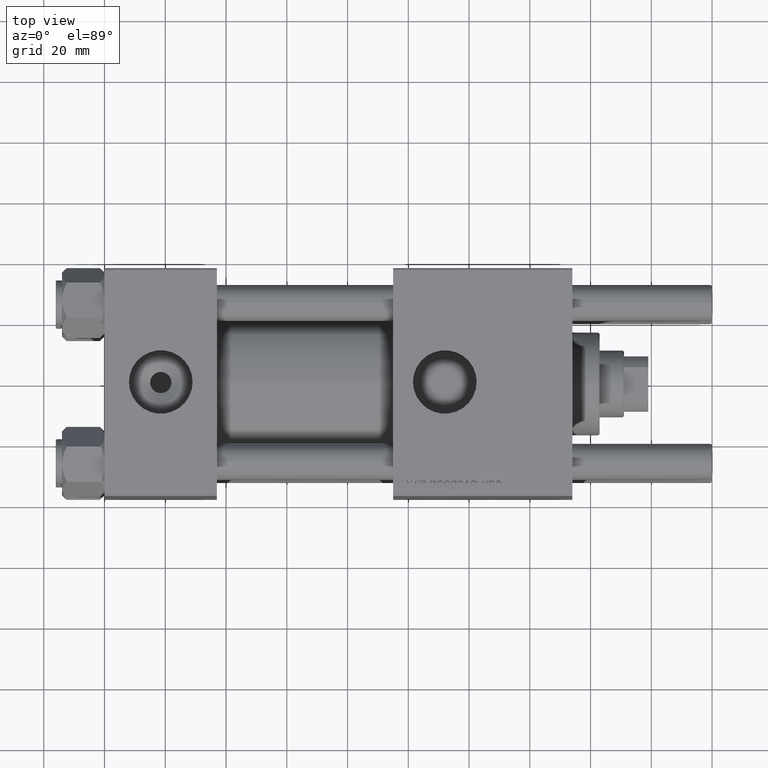
[diagram: clean part render]
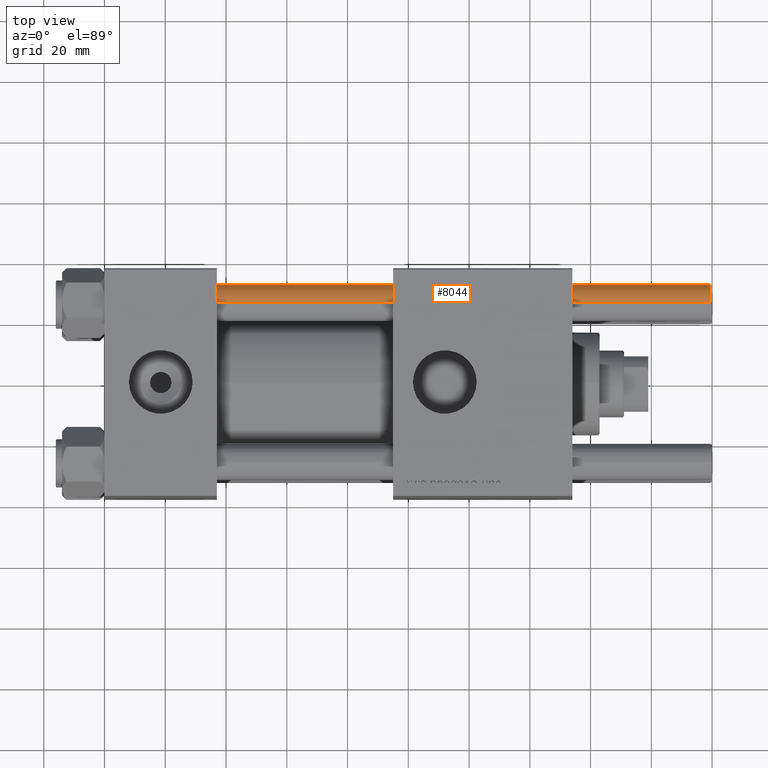
[diagram: same view with one face highlighted and labeled with its STEP entity id]
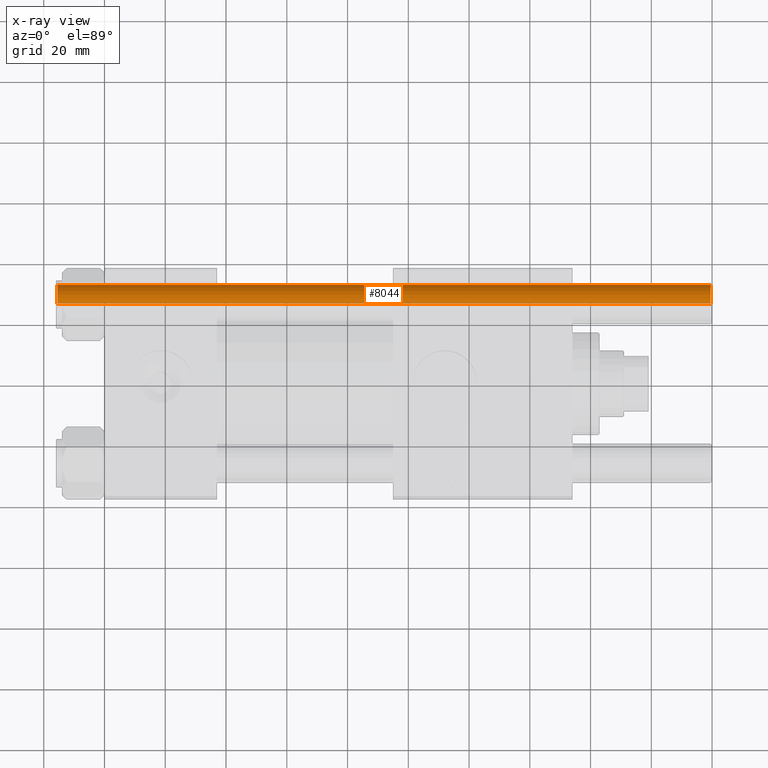
[diagram: x-ray of the same camera — body ghosted, the highlighted face saturated]
A machine part, top view. The second image highlights one B-rep face of the part: STEP entity #8044.
The next image is the same camera in x-ray: the body ghosted, the highlighted face saturated — about 0% of this face is hidden behind the body in this view.
In plain terms, the highlighted cylindrical surface (edge-blend (fillet) strip) has radius 6 mm, axis along (1, -0, -0).
Its self-contained STEP definition (entity closure, byte-faithful):
#4216 = DIRECTION ( 'NONE',  ( 1.000000000000000000, 0.000000000000000000, 0.000000000000000000 ) ) ;
#8044 = ADVANCED_FACE ( 'NONE', ( #55894 ), #38654, .T. ) ;
#8506 = CARTESIAN_POINT ( 'NONE',  ( 0.000000000000000000, 0.000000000000000000, 215.5000000000000284 ) ) ;
#8533 = CARTESIAN_POINT ( 'NONE',  ( 6.000000000000000888, 7.347880794884120722E-16, 215.5000000000000284 ) ) ;
#10506 = CARTESIAN_POINT ( 'NONE',  ( 0.000000000000000000, 0.000000000000000000, 0.5000000000000004441 ) ) ;
#11086 = AXIS2_PLACEMENT_3D ( 'NONE', #12852, #47843, #56459 ) ;
#12288 = CARTESIAN_POINT ( 'NONE',  ( 6.000000000000000888, 7.347880794884120722E-16, 216.0000000000000000 ) ) ;
#12377 = EDGE_LOOP ( 'NONE', ( #35232, #15781, #15096, #19320 ) ) ;
#12852 = CARTESIAN_POINT ( 'NONE',  ( 0.000000000000000000, 0.000000000000000000, 216.0000000000000000 ) ) ;
#13279 = EDGE_CURVE ( 'NONE', #31753, #42883, #19436, .T. ) ;
#14269 = VECTOR ( 'NONE', #26030, 1000.000000000000000 ) ;
#15096 = ORIENTED_EDGE ( 'NONE', *, *, #13279, .T. ) ;
#15781 = ORIENTED_EDGE ( 'NONE', *, *, #27270, .T. ) ;
#17930 = CARTESIAN_POINT ( 'NONE',  ( -6.000000000000000888, 0.000000000000000000, 0.5000000000000004441 ) ) ;
#18591 = AXIS2_PLACEMENT_3D ( 'NONE', #8506, #25984, #4216 ) ;
#19320 = ORIENTED_EDGE ( 'NONE', *, *, #35281, .F. ) ;
#19436 = CIRCLE ( 'NONE', #51490, 6.000000000000000888 ) ;
#21179 = LINE ( 'NONE', #12288, #14269 ) ;
#25984 = DIRECTION ( 'NONE',  ( 0.000000000000000000, 0.000000000000000000, -1.000000000000000000 ) ) ;
#26030 = DIRECTION ( 'NONE',  ( -0.000000000000000000, -0.000000000000000000, -1.000000000000000000 ) ) ;
#27270 = EDGE_CURVE ( 'NONE', #41250, #31753, #21179, .T. ) ;
#29111 = DIRECTION ( 'NONE',  ( 1.000000000000000000, 0.000000000000000000, 0.000000000000000000 ) ) ;
#29252 = EDGE_CURVE ( 'NONE', #53387, #41250, #29860, .T. ) ;
#29860 = CIRCLE ( 'NONE', #18591, 6.000000000000000888 ) ;
#30478 = LINE ( 'NONE', #35066, #43463 ) ;
#31753 = VERTEX_POINT ( 'NONE', #56640 ) ;
#35066 = CARTESIAN_POINT ( 'NONE',  ( -6.000000000000000888, 0.000000000000000000, 216.0000000000000000 ) ) ;
#35232 = ORIENTED_EDGE ( 'NONE', *, *, #29252, .T. ) ;
#35281 = EDGE_CURVE ( 'NONE', #53387, #42883, #30478, .T. ) ;
#38654 = CYLINDRICAL_SURFACE ( 'NONE', #11086, 6.000000000000000888 ) ;
#41250 = VERTEX_POINT ( 'NONE', #8533 ) ;
#42883 = VERTEX_POINT ( 'NONE', #17930 ) ;
#43463 = VECTOR ( 'NONE', #52851, 1000.000000000000000 ) ;
#47843 = DIRECTION ( 'NONE',  ( -0.000000000000000000, -0.000000000000000000, -1.000000000000000000 ) ) ;
#49615 = CARTESIAN_POINT ( 'NONE',  ( -6.000000000000000888, 0.000000000000000000, 215.5000000000000284 ) ) ;
#50917 = DIRECTION ( 'NONE',  ( -0.000000000000000000, -0.000000000000000000, 1.000000000000000000 ) ) ;
#51490 = AXIS2_PLACEMENT_3D ( 'NONE', #10506, #50917, #29111 ) ;
#52851 = DIRECTION ( 'NONE',  ( -0.000000000000000000, -0.000000000000000000, -1.000000000000000000 ) ) ;
#53387 = VERTEX_POINT ( 'NONE', #49615 ) ;
#55894 = FACE_OUTER_BOUND ( 'NONE', #12377, .T. ) ;
#56459 = DIRECTION ( 'NONE',  ( -1.000000000000000000, 0.000000000000000000, 0.000000000000000000 ) ) ;
#56640 = CARTESIAN_POINT ( 'NONE',  ( 6.000000000000000888, 7.347880794884120722E-16, 0.5000000000000004441 ) ) ;